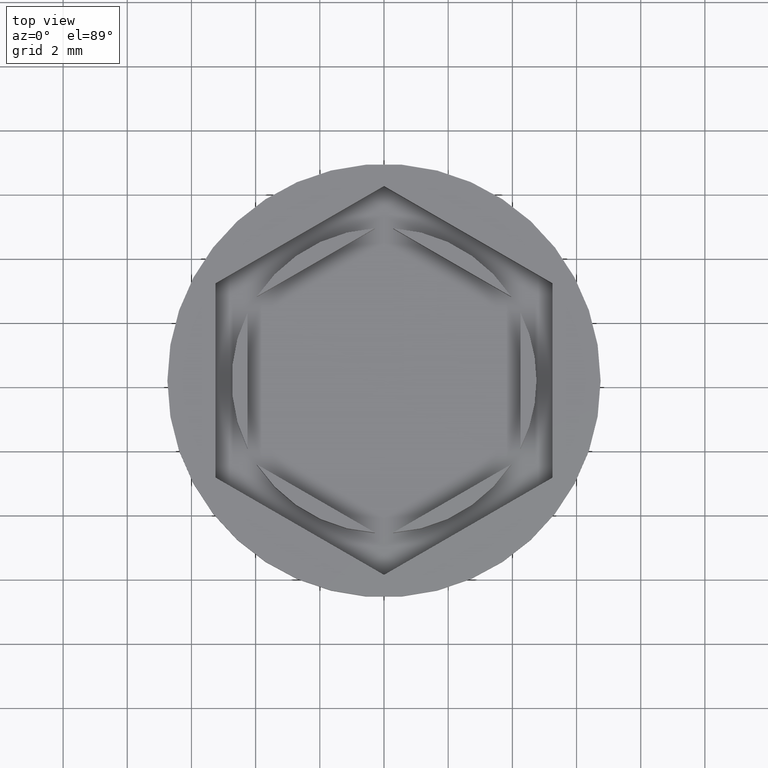
[diagram: clean part render]
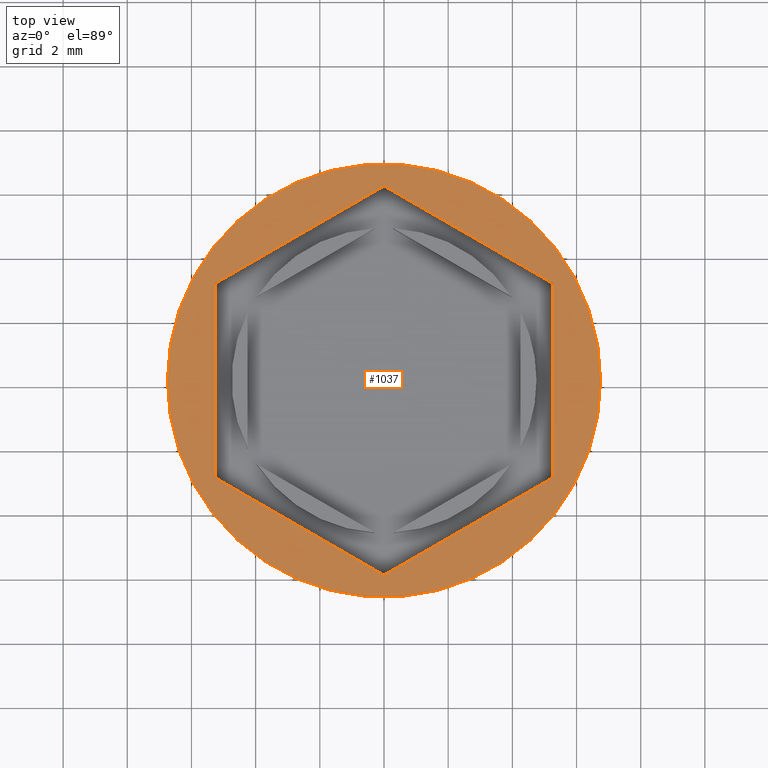
[diagram: same view with one face highlighted and labeled with its STEP entity id]
A machine part, top view. The second image highlights one B-rep face of the part: STEP entity #1037.
In plain terms, the highlighted planar face has unit normal (0, -0, 1).
Its self-contained STEP definition (entity closure, byte-faithful):
#58 = FACE_OUTER_BOUND ( 'NONE', #1329, .T. ) ;
#105 = DIRECTION ( 'NONE',  ( 0.000000000000000000, -1.000000000000000000, 0.000000000000000000 ) ) ;
#150 = DIRECTION ( 'NONE',  ( -0.8660254037844387076, -0.4999999999999999445, 0.000000000000000000 ) ) ;
#152 = CARTESIAN_POINT ( 'NONE',  ( 0.000000000000000000, 0.000000000000000000, 0.000000000000000000 ) ) ;
#162 = AXIS2_PLACEMENT_3D ( 'NONE', #152, #770, #602 ) ;
#171 = CARTESIAN_POINT ( 'NONE',  ( -4.336808689942017736E-16, -6.062177826491070398, 0.000000000000000000 ) ) ;
#179 = EDGE_CURVE ( 'NONE', #1387, #812, #381, .T. ) ;
#192 = CARTESIAN_POINT ( 'NONE',  ( -6.750000000000000000, 8.266365894244634333E-16, 0.000000000000000000 ) ) ;
#195 = ORIENTED_EDGE ( 'NONE', *, *, #1930, .F. ) ;
#257 = VERTEX_POINT ( 'NONE', #192 ) ;
#274 = LINE ( 'NONE', #721, #911 ) ;
#364 = VECTOR ( 'NONE', #680, 1000.000000000000000 ) ;
#369 = LINE ( 'NONE', #532, #778 ) ;
#381 = LINE ( 'NONE', #1268, #1605 ) ;
#386 = CARTESIAN_POINT ( 'NONE',  ( 0.000000000000000000, 0.000000000000000000, 0.000000000000000000 ) ) ;
#428 = ORIENTED_EDGE ( 'NONE', *, *, #1513, .T. ) ;
#430 = DIRECTION ( 'NONE',  ( 0.000000000000000000, -0.000000000000000000, 1.000000000000000000 ) ) ;
#463 = VERTEX_POINT ( 'NONE', #982 ) ;
#473 = VERTEX_POINT ( 'NONE', #674 ) ;
#503 = DIRECTION ( 'NONE',  ( -0.000000000000000000, -0.000000000000000000, 1.000000000000000000 ) ) ;
#532 = CARTESIAN_POINT ( 'NONE',  ( 2.624999999999999112, 4.546633369868303021, 0.000000000000000000 ) ) ;
#602 = DIRECTION ( 'NONE',  ( 1.000000000000000000, 0.000000000000000000, 0.000000000000000000 ) ) ;
#629 = DIRECTION ( 'NONE',  ( 0.8660254037844387076, -0.4999999999999999445, 0.000000000000000000 ) ) ;
#647 = EDGE_CURVE ( 'NONE', #1238, #1387, #1103, .T. ) ;
#674 = CARTESIAN_POINT ( 'NONE',  ( 0.000000000000000000, 6.062177826491069510, 0.000000000000000000 ) ) ;
#680 = DIRECTION ( 'NONE',  ( 0.8660254037844385966, 0.5000000000000001110, 0.000000000000000000 ) ) ;
#687 = AXIS2_PLACEMENT_3D ( 'NONE', #1494, #430, #1034 ) ;
#691 = CIRCLE ( 'NONE', #162, 6.750000000000000000 ) ;
#712 = ORIENTED_EDGE ( 'NONE', *, *, #1655, .F. ) ;
#721 = CARTESIAN_POINT ( 'NONE',  ( -5.249999999999999112, 0.000000000000000000, 0.000000000000000000 ) ) ;
#736 = EDGE_LOOP ( 'NONE', ( #825, #766, #1949, #712, #844, #195 ) ) ;
#766 = ORIENTED_EDGE ( 'NONE', *, *, #647, .F. ) ;
#770 = DIRECTION ( 'NONE',  ( -0.000000000000000000, -0.000000000000000000, 1.000000000000000000 ) ) ;
#773 = EDGE_CURVE ( 'NONE', #473, #463, #1356, .T. ) ;
#778 = VECTOR ( 'NONE', #1568, 1000.000000000000114 ) ;
#812 = VERTEX_POINT ( 'NONE', #1197 ) ;
#825 = ORIENTED_EDGE ( 'NONE', *, *, #179, .F. ) ;
#827 = DIRECTION ( 'NONE',  ( 1.000000000000000000, 0.000000000000000000, 0.000000000000000000 ) ) ;
#844 = ORIENTED_EDGE ( 'NONE', *, *, #773, .F. ) ;
#911 = VECTOR ( 'NONE', #105, 1000.000000000000000 ) ;
#946 = DIRECTION ( 'NONE',  ( 0.000000000000000000, 1.000000000000000000, -0.000000000000000000 ) ) ;
#982 = CARTESIAN_POINT ( 'NONE',  ( -5.249999999999999112, 3.031088913245535199, 0.000000000000000000 ) ) ;
#1019 = FACE_BOUND ( 'NONE', #736, .T. ) ;
#1034 = DIRECTION ( 'NONE',  ( 1.000000000000000000, 0.000000000000000000, 0.000000000000000000 ) ) ;
#1037 = ADVANCED_FACE ( 'NONE', ( #1019, #58 ), #1166, .T. ) ;
#1092 = CIRCLE ( 'NONE', #1323, 6.750000000000000000 ) ;
#1103 = LINE ( 'NONE', #1112, #364 ) ;
#1112 = CARTESIAN_POINT ( 'NONE',  ( 2.624999999999999112, -4.546633369868300356, 0.000000000000000000 ) ) ;
#1163 = CARTESIAN_POINT ( 'NONE',  ( 5.249999999999997335, -3.031088913245533423, 0.000000000000000000 ) ) ;
#1166 = PLANE ( 'NONE',  #687 ) ;
#1197 = CARTESIAN_POINT ( 'NONE',  ( 5.249999999999997335, 3.031088913245537420, 0.000000000000000000 ) ) ;
#1203 = EDGE_CURVE ( 'NONE', #1231, #1238, #1676, .T. ) ;
#1210 = CARTESIAN_POINT ( 'NONE',  ( -2.624999999999999556, -4.546633369868303021, 0.000000000000000000 ) ) ;
#1230 = CARTESIAN_POINT ( 'NONE',  ( -2.624999999999999112, 4.546633369868302132, 0.000000000000000000 ) ) ;
#1231 = VERTEX_POINT ( 'NONE', #1841 ) ;
#1238 = VERTEX_POINT ( 'NONE', #171 ) ;
#1259 = EDGE_CURVE ( 'NONE', #257, #1505, #1092, .T. ) ;
#1268 = CARTESIAN_POINT ( 'NONE',  ( 5.249999999999997335, 0.000000000000000000, 0.000000000000000000 ) ) ;
#1287 = ORIENTED_EDGE ( 'NONE', *, *, #1259, .T. ) ;
#1323 = AXIS2_PLACEMENT_3D ( 'NONE', #386, #503, #827 ) ;
#1329 = EDGE_LOOP ( 'NONE', ( #428, #1287 ) ) ;
#1352 = CARTESIAN_POINT ( 'NONE',  ( 6.750000000000000000, 0.000000000000000000, 0.000000000000000000 ) ) ;
#1356 = LINE ( 'NONE', #1230, #1588 ) ;
#1387 = VERTEX_POINT ( 'NONE', #1163 ) ;
#1494 = CARTESIAN_POINT ( 'NONE',  ( 0.000000000000000000, 0.000000000000000000, 0.000000000000000000 ) ) ;
#1505 = VERTEX_POINT ( 'NONE', #1352 ) ;
#1513 = EDGE_CURVE ( 'NONE', #1505, #257, #691, .T. ) ;
#1568 = DIRECTION ( 'NONE',  ( -0.8660254037844387076, 0.4999999999999998890, 0.000000000000000000 ) ) ;
#1588 = VECTOR ( 'NONE', #150, 999.9999999999998863 ) ;
#1605 = VECTOR ( 'NONE', #946, 1000.000000000000000 ) ;
#1635 = VECTOR ( 'NONE', #629, 999.9999999999998863 ) ;
#1655 = EDGE_CURVE ( 'NONE', #463, #1231, #274, .T. ) ;
#1676 = LINE ( 'NONE', #1210, #1635 ) ;
#1841 = CARTESIAN_POINT ( 'NONE',  ( -5.249999999999999112, -3.031088913245535199, 0.000000000000000000 ) ) ;
#1930 = EDGE_CURVE ( 'NONE', #812, #473, #369, .T. ) ;
#1949 = ORIENTED_EDGE ( 'NONE', *, *, #1203, .F. ) ;